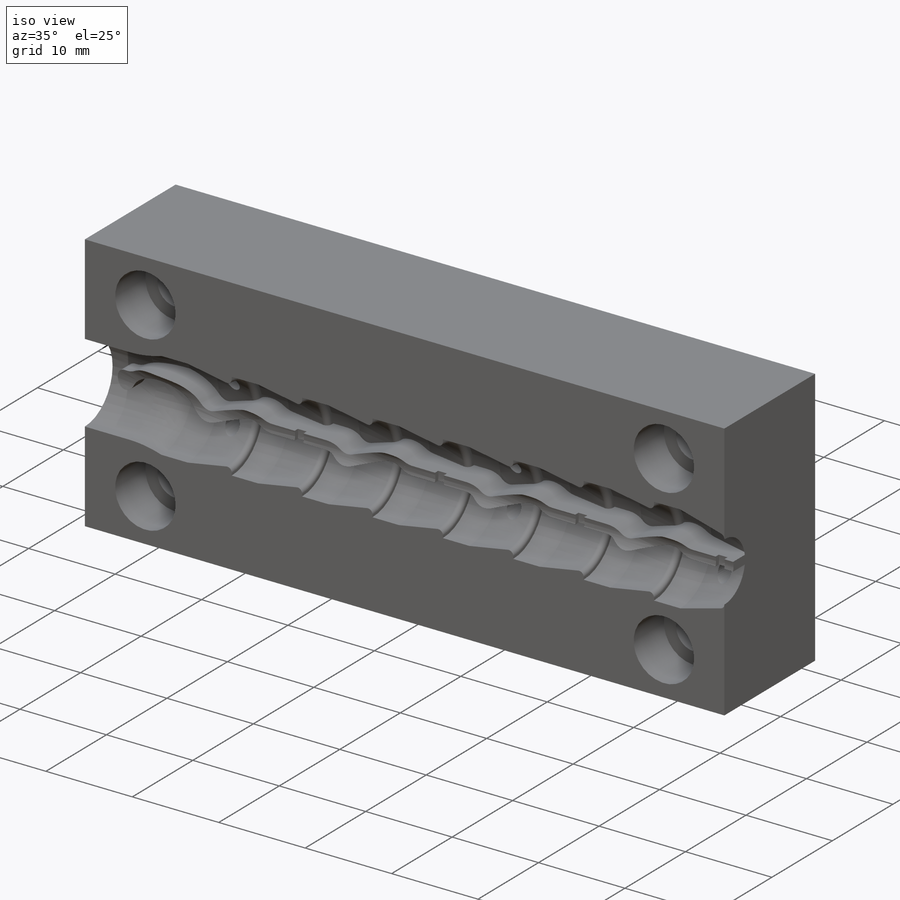
[diagram: iso view]
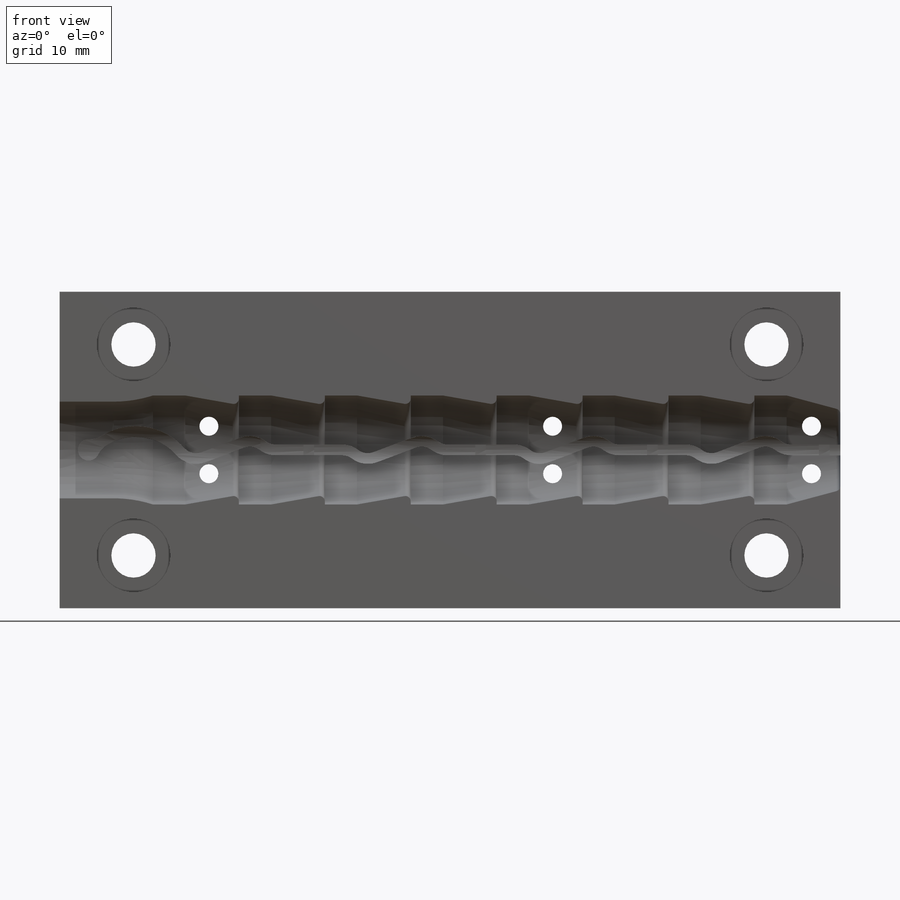
[diagram: front view]
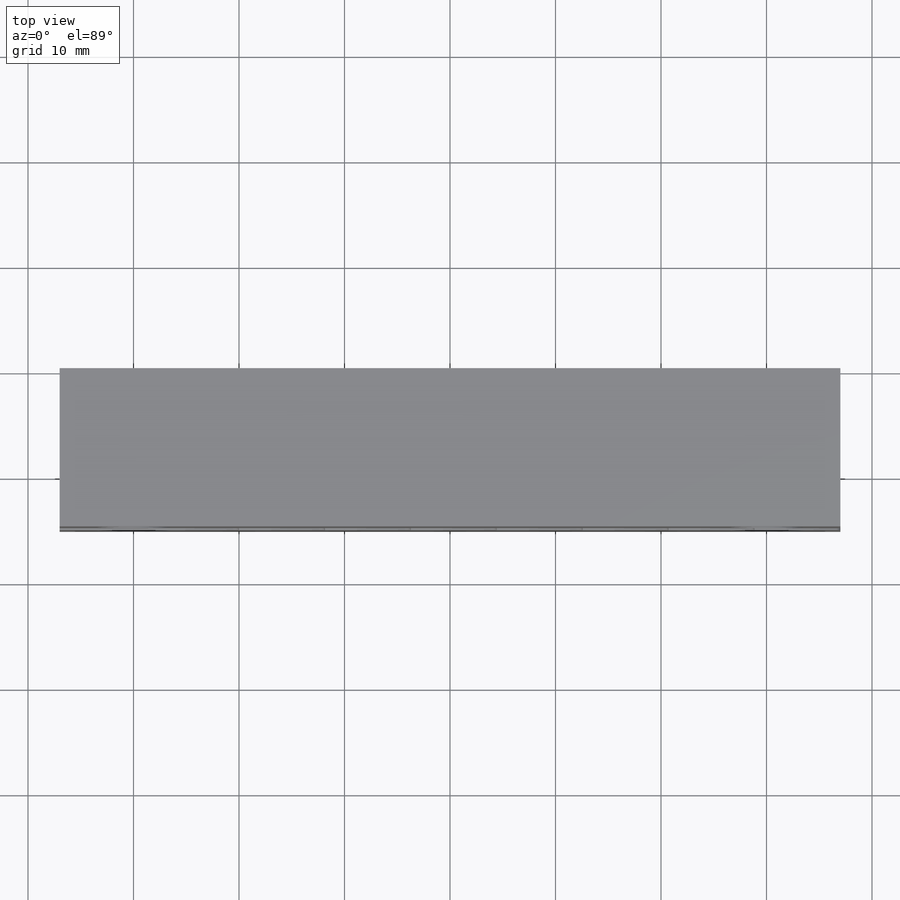
[diagram: top view]
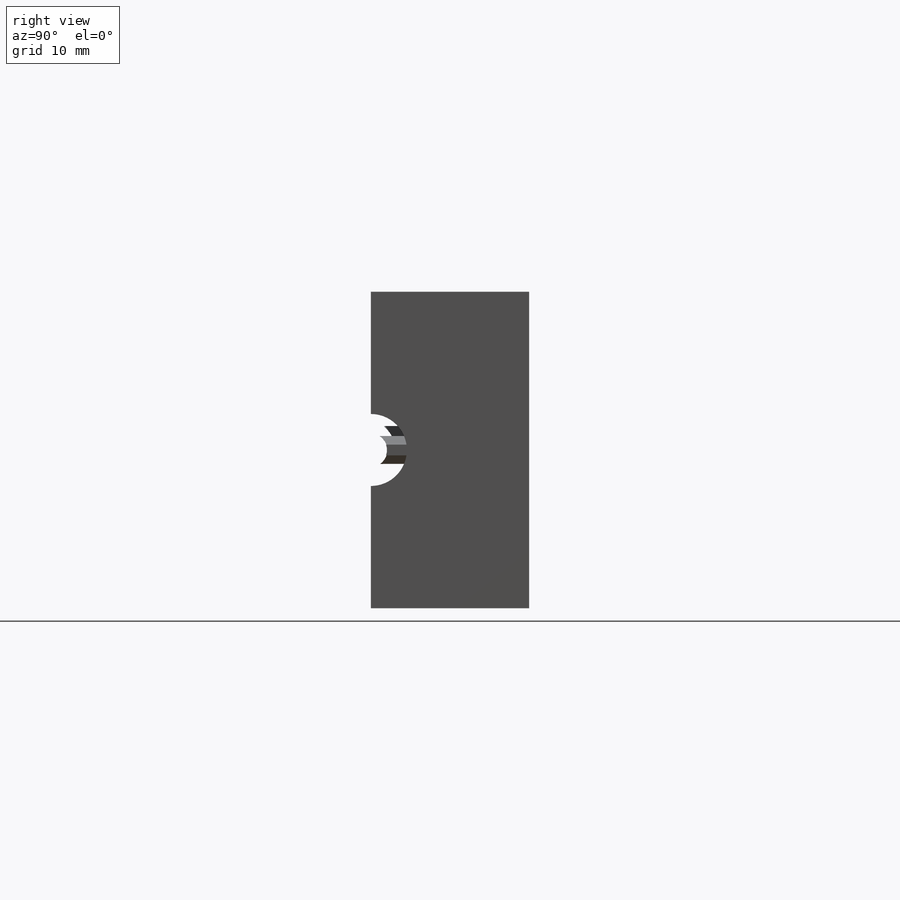
[diagram: right view]
SOLIDWORKS PART (.sldprt)
format: sldprt  version: not decoded by parser v0  size: 2,560,512 bytes
history: native  units: mm
features: sketch x5, thread x4, plane x3, extrude x2, cut_extrude x2, material x1, hole x1 (+9 scaffold rows collapsed)
feature tree (27):
  scaffold x9  (default folders/planes/origin — collapsed)
  material  "Materiał <nieokreślony>"
  plane  "Plane1"
  plane  "Plane2"
  plane  "Plane3"
  sketch  "Szkic1"  dims[c1.D1=~192.504854mm c2.D1=74.0mm c2.D2=30.0mm]
  extrude  "Wyciągnięcie1"  Depth=15mm
  extrude  "TDZ10M120<2>@Forma na kołek 10x100,1201"  [1 undecoded]
  sketch  "Szkic2"  dims[c1.D1=7.0mm c1.D3=7.0mm c1.D2=60.0mm c2.D3=20.0mm]
  cut_extrude  "Wyciągnięcie2"  Depth=5mm
  hole  "Otwór gwintowany M51"  [1 undecoded]
  sketch  "Szkic4"
  sketch  "Szkic3"  dims[hole-wizard template sketch: 59 standard entries collapsed; hole parameters kept: c18.Średnica otworu gwintowanego na wylot=4.2mm c18.Głębokość otworu gwintowanego na wylot=10.0mm]
  thread  "Gwint otworu1"  Diameter=5mm  [1 undecoded]
  thread  "Gwint otworu2"  Diameter=5mm  [1 undecoded]
  thread  "Gwint otworu3"  Diameter=5mm  [1 undecoded]
  thread  "Gwint otworu4"  Diameter=5mm  [1 undecoded]
  sketch  "Szkic5"  dims[D2=1.8mm D1=4.5mm]
  cut_extrude  "Wytnij-wyciągnięcie1"  [1 undecoded]
decode coverage: 10 of 14 modeling features carry decoded parameters
note: ~ marks probable driven/reference dimensions
note: 7 parameter values undecoded
summary: no parameter record found for 3 features
note: suppression state not decoded; provenance and decode notes live in map.json
